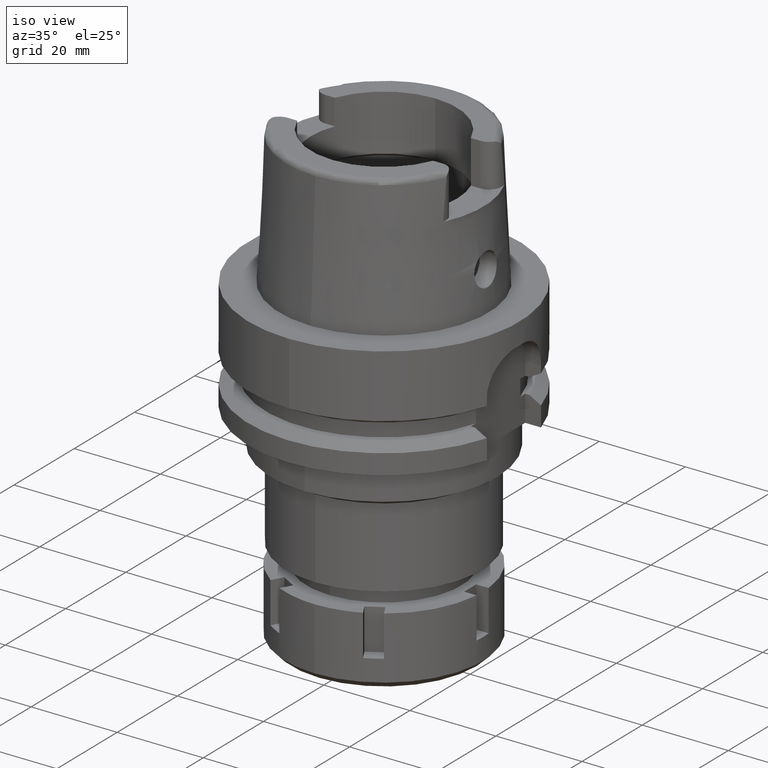
[diagram: clean part render]
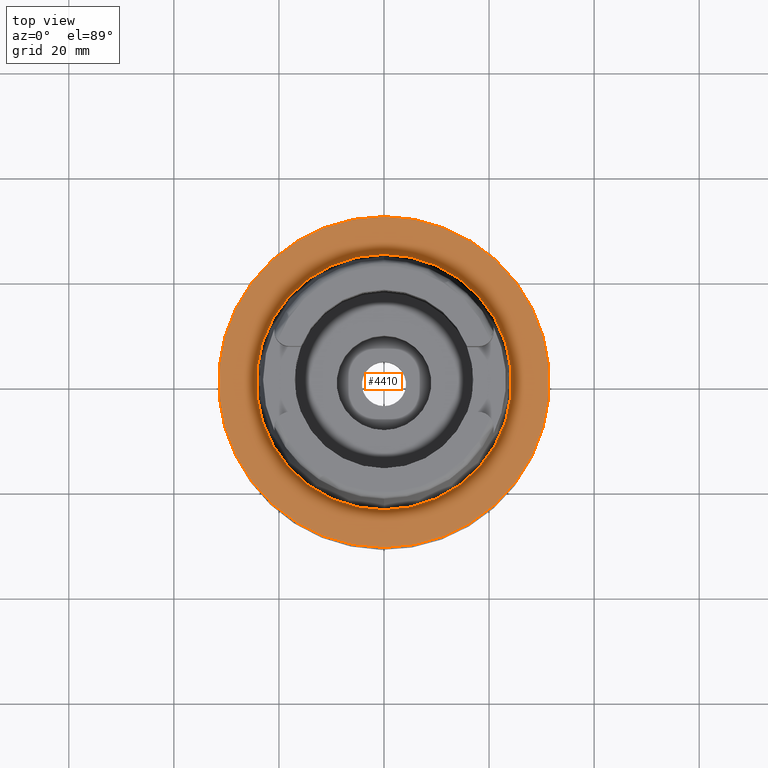
[diagram: tour spotlight — one face highlighted and labeled with its STEP entity id]
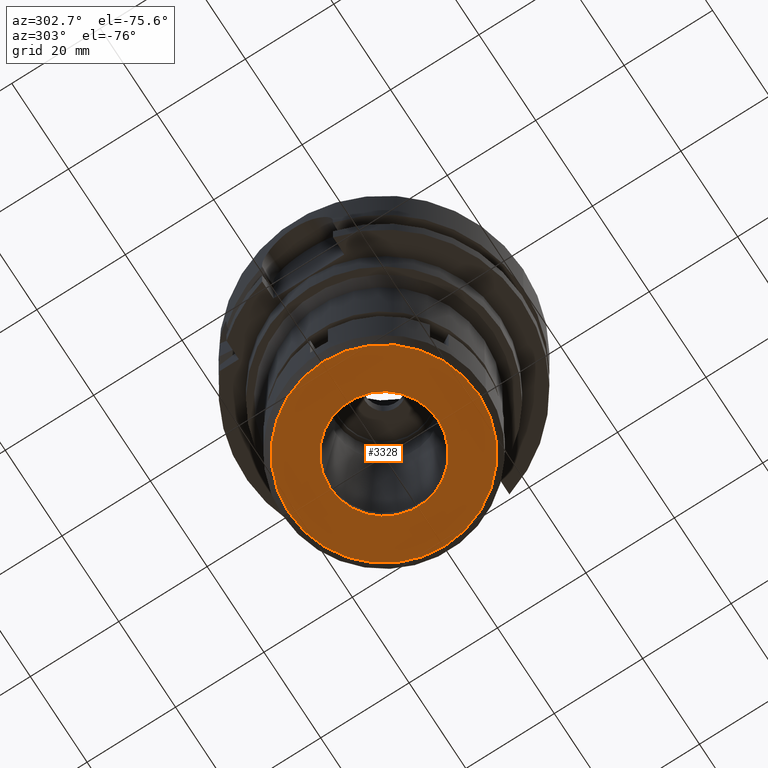
[diagram: tour spotlight — one face highlighted and labeled with its STEP entity id]
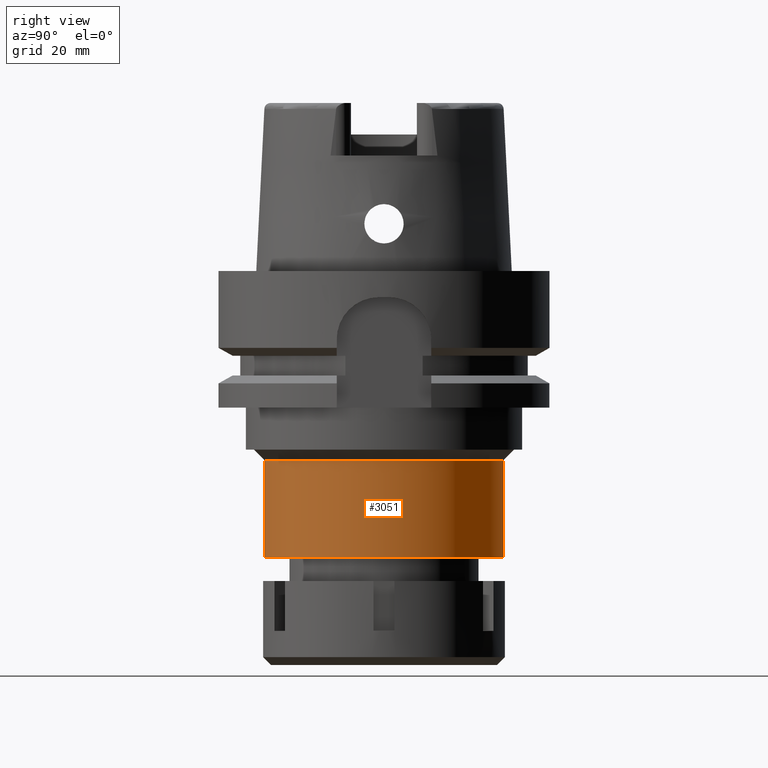
[diagram: tour spotlight — one face highlighted and labeled with its STEP entity id]
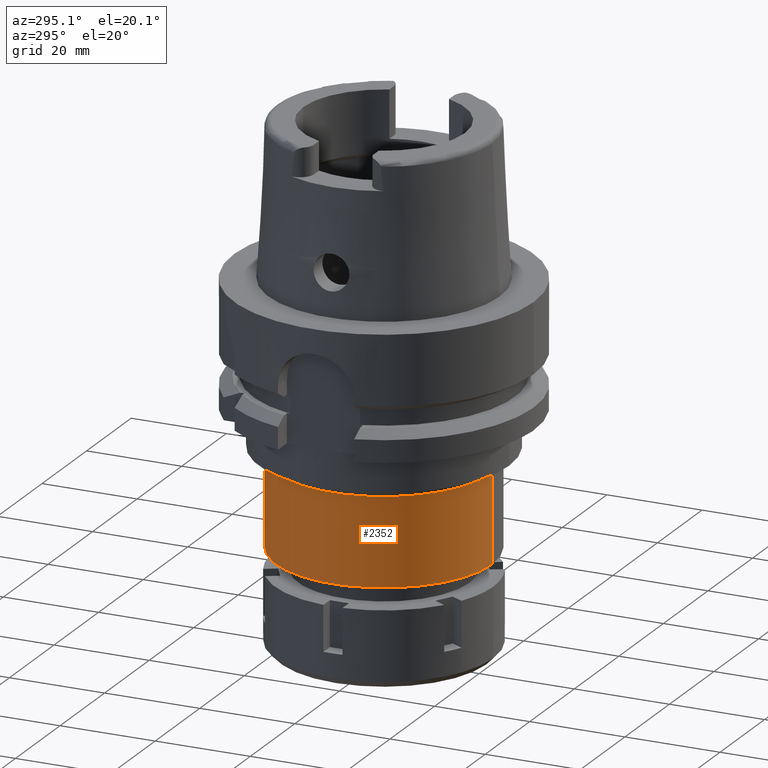
[diagram: tour spotlight — one face highlighted and labeled with its STEP entity id]
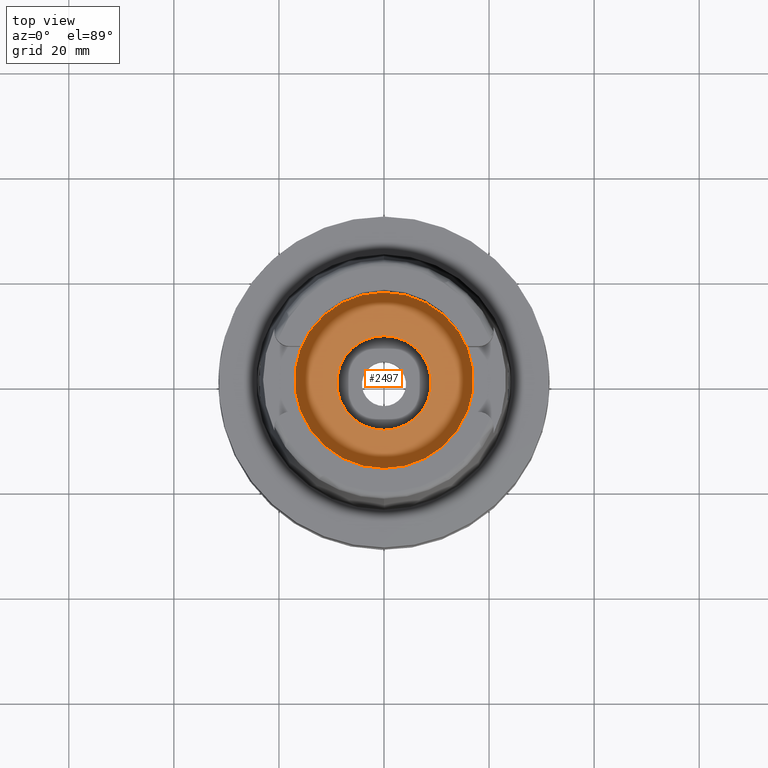
[diagram: tour spotlight — one face highlighted and labeled with its STEP entity id]
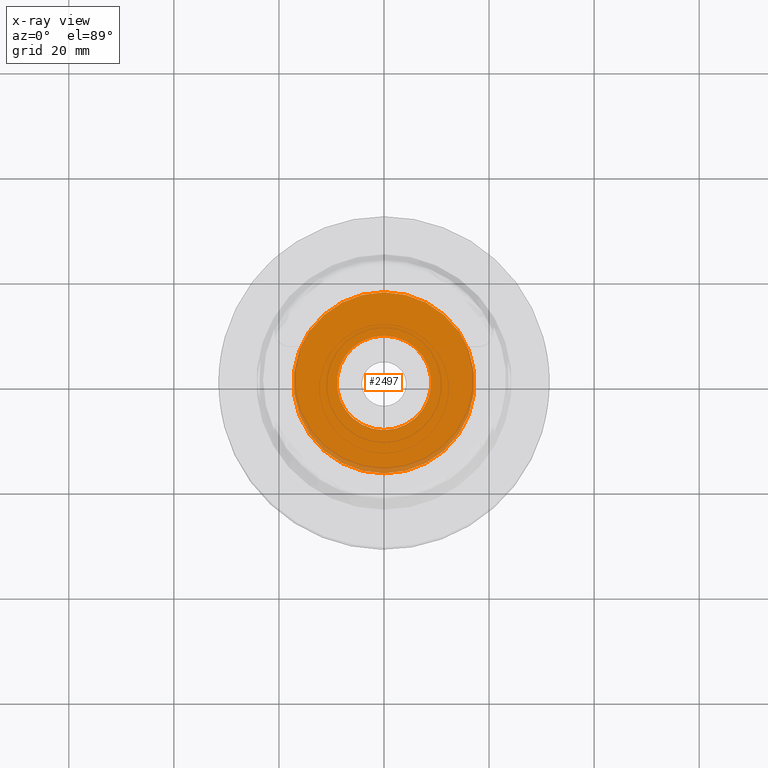
[diagram: x-ray of the same camera — body ghosted, this tour face saturated]
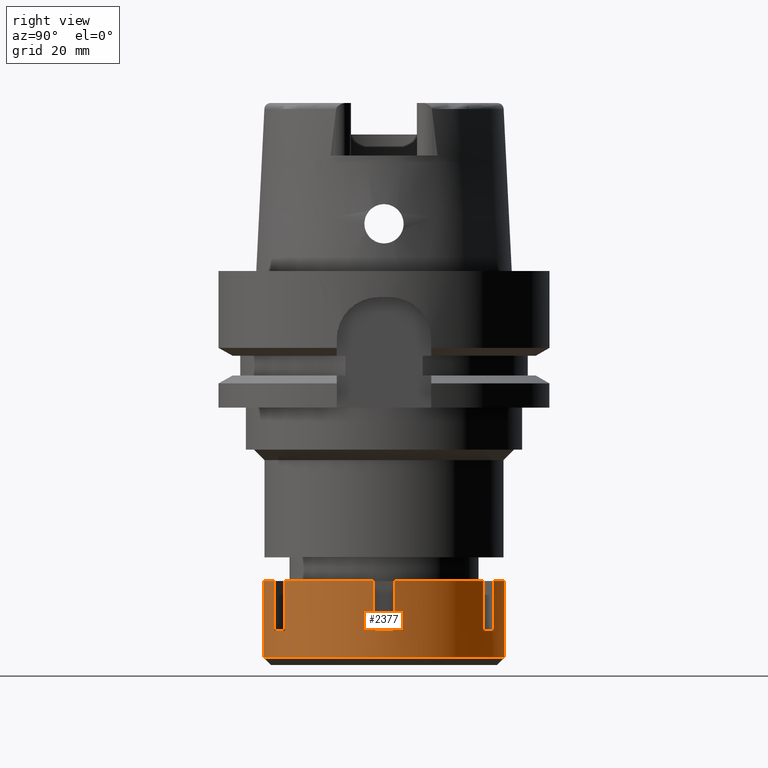
[diagram: tour spotlight — one face highlighted and labeled with its STEP entity id]
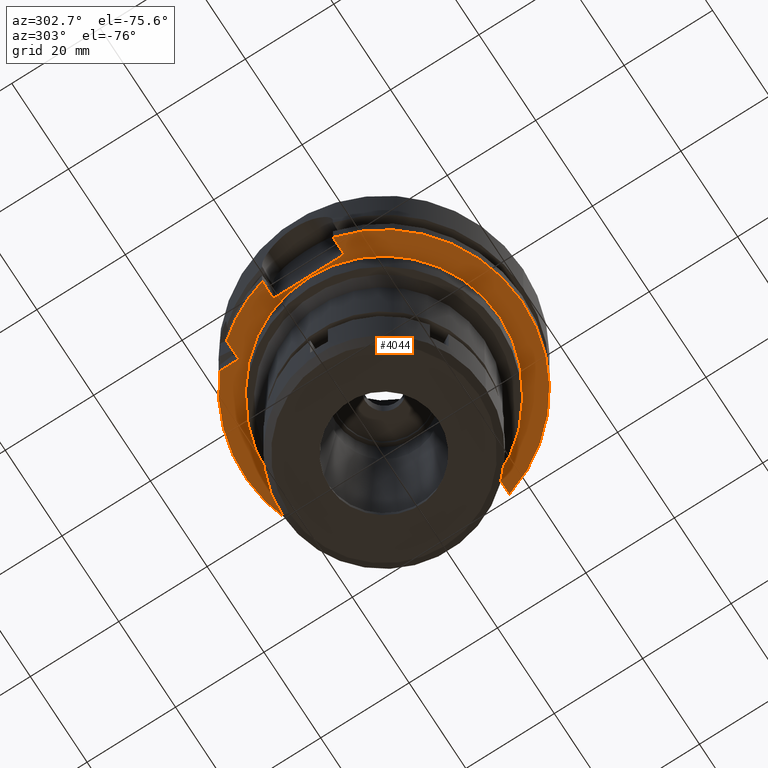
[diagram: tour spotlight — one face highlighted and labeled with its STEP entity id]
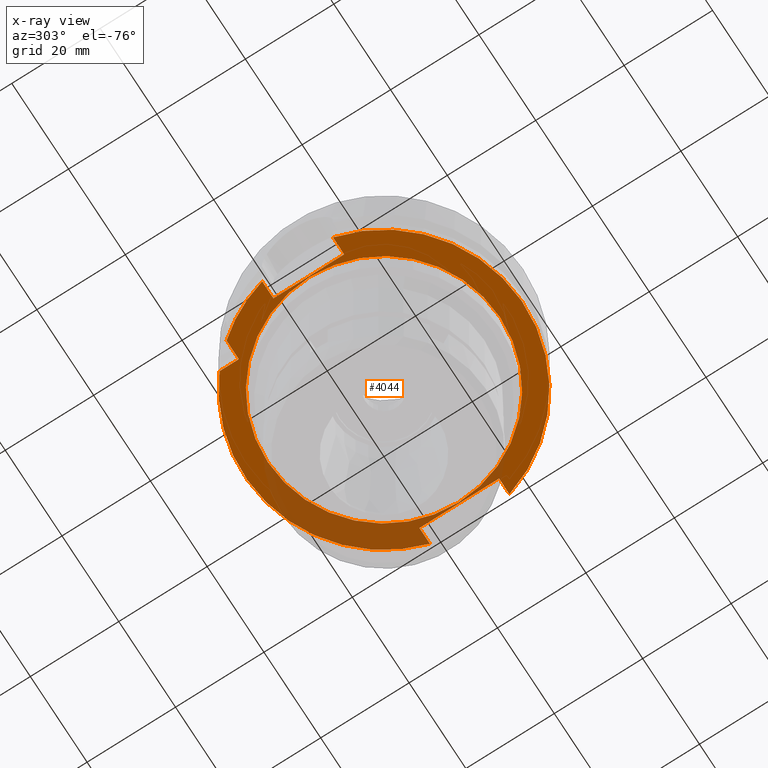
[diagram: x-ray of the same camera — body ghosted, this tour face saturated]
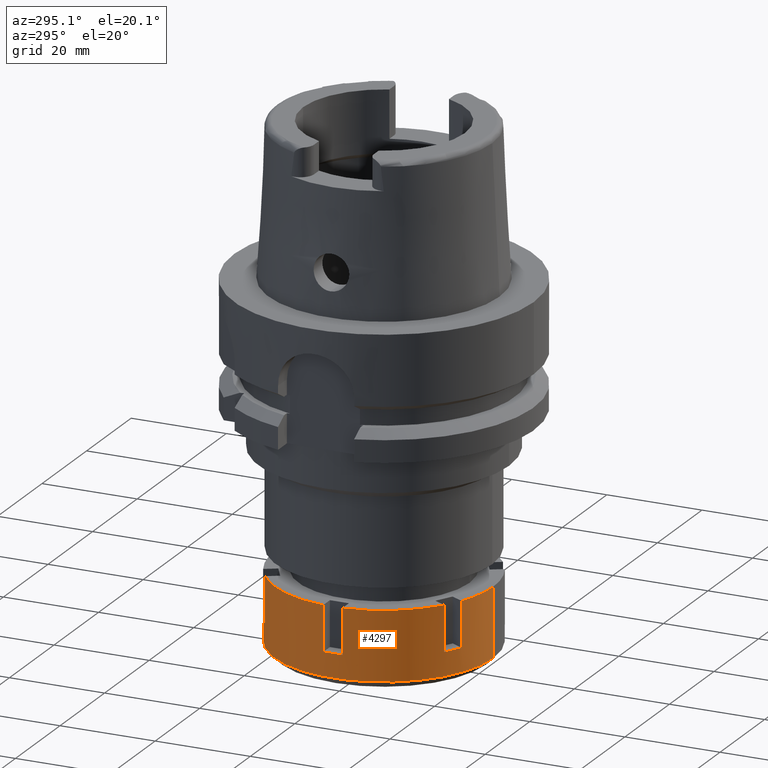
[diagram: tour spotlight — one face highlighted and labeled with its STEP entity id]
A machine part: a face-by-face anatomy tour. The part has 141 B-rep faces; the first image is the clean iso view, then the 8 largest visible faces are spotlighted one at a time (largest first), each with its STEP entity span.

Face 1 — top view, entity #4410. In plain terms, the highlighted planar face has unit normal (0, 0, 1).
Definition (entity closure, byte-faithful):
#130 = FACE_OUTER_BOUND ( 'NONE', #5136, .T. ) ;
#165 = DIRECTION ( 'NONE',  ( 1.000000000000000000, 0.0000000000000000000, 0.0000000000000000000 ) ) ;
#339 = CARTESIAN_POINT ( 'NONE',  ( 0.0000000000000000000, -24.31503482328999866, -9.841016890276999833E-13 ) ) ;
#567 = AXIS2_PLACEMENT_3D ( 'NONE', #2503, #3907, #5386 ) ;
#759 = DIRECTION ( 'NONE',  ( 0.0000000000000000000, -1.000000000000000000, 0.0000000000000000000 ) ) ;
#941 = AXIS2_PLACEMENT_3D ( 'NONE', #4261, #1405, #2859 ) ;
#1325 = ORIENTED_EDGE ( 'NONE', *, *, #3029, .F. ) ;
#1405 = DIRECTION ( 'NONE',  ( 0.0000000000000000000, 0.0000000000000000000, -1.000000000000000000 ) ) ;
#1539 = ORIENTED_EDGE ( 'NONE', *, *, #2115, .F. ) ;
#1993 = PLANE ( 'NONE',  #3288 ) ;
#2115 = EDGE_CURVE ( 'NONE', #5096, #5033, #3370, .T. ) ;
#2454 = AXIS2_PLACEMENT_3D ( 'NONE', #4749, #5673, #4689 ) ;
#2502 = DIRECTION ( 'NONE',  ( 0.0000000000000000000, 0.0000000000000000000, 1.000000000000000000 ) ) ;
#2503 = CARTESIAN_POINT ( 'NONE',  ( 0.0000000000000000000, 0.0000000000000000000, -1.705302565823999926E-12 ) ) ;
#2655 = AXIS2_PLACEMENT_3D ( 'NONE', #3168, #5097, #759 ) ;
#2666 = EDGE_CURVE ( 'NONE', #3062, #4401, #6109, .T. ) ;
#2726 = ORIENTED_EDGE ( 'NONE', *, *, #2666, .F. ) ;
#2859 = DIRECTION ( 'NONE',  ( 0.0000000000000000000, -1.000000000000000000, 0.0000000000000000000 ) ) ;
#2916 = CARTESIAN_POINT ( 'NONE',  ( 0.0000000000000000000, 31.50000000000000000, -1.042129345780999972E-13 ) ) ;
#2960 = CIRCLE ( 'NONE', #2454, 31.50000000000000000 ) ;
#3029 = EDGE_CURVE ( 'NONE', #4401, #3062, #2960, .T. ) ;
#3062 = VERTEX_POINT ( 'NONE', #5828 ) ;
#3120 = CARTESIAN_POINT ( 'NONE',  ( 0.0000000000000000000, 24.31503482328999866, -1.705302565823999926E-12 ) ) ;
#3168 = CARTESIAN_POINT ( 'NONE',  ( 0.0000000000000000000, 0.0000000000000000000, -1.705302565823999926E-12 ) ) ;
#3288 = AXIS2_PLACEMENT_3D ( 'NONE', #4406, #2502, #165 ) ;
#3370 = CIRCLE ( 'NONE', #2655, 24.31503482328999866 ) ;
#3907 = DIRECTION ( 'NONE',  ( 0.0000000000000000000, 0.0000000000000000000, 1.000000000000000000 ) ) ;
#4261 = CARTESIAN_POINT ( 'NONE',  ( 0.0000000000000000000, 0.0000000000000000000, -1.705302565823999875E-13 ) ) ;
#4401 = VERTEX_POINT ( 'NONE', #2916 ) ;
#4406 = CARTESIAN_POINT ( 'NONE',  ( 0.0000000000000000000, 0.0000000000000000000, 0.0000000000000000000 ) ) ;
#4410 = ADVANCED_FACE ( 'NONE', ( #130, #4877 ), #1993, .T. ) ;
#4428 = EDGE_LOOP ( 'NONE', ( #5678, #1539 ) ) ;
#4689 = DIRECTION ( 'NONE',  ( 0.0000000000000000000, 1.000000000000000000, 0.0000000000000000000 ) ) ;
#4749 = CARTESIAN_POINT ( 'NONE',  ( 0.0000000000000000000, 0.0000000000000000000, -1.705302565823999875E-13 ) ) ;
#4877 = FACE_BOUND ( 'NONE', #4428, .T. ) ;
#5033 = VERTEX_POINT ( 'NONE', #3120 ) ;
#5096 = VERTEX_POINT ( 'NONE', #339 ) ;
#5097 = DIRECTION ( 'NONE',  ( 0.0000000000000000000, 0.0000000000000000000, 1.000000000000000000 ) ) ;
#5136 = EDGE_LOOP ( 'NONE', ( #1325, #2726 ) ) ;
#5386 = DIRECTION ( 'NONE',  ( 0.0000000000000000000, 1.000000000000000000, 0.0000000000000000000 ) ) ;
#5508 = EDGE_CURVE ( 'NONE', #5033, #5096, #6138, .T. ) ;
#5673 = DIRECTION ( 'NONE',  ( 0.0000000000000000000, 0.0000000000000000000, -1.000000000000000000 ) ) ;
#5678 = ORIENTED_EDGE ( 'NONE', *, *, #5508, .F. ) ;
#5828 = CARTESIAN_POINT ( 'NONE',  ( 0.0000000000000000000, -31.50000000000000000, -1.705302565823999875E-13 ) ) ;
#6109 = CIRCLE ( 'NONE', #941, 31.50000000000000000 ) ;
#6138 = CIRCLE ( 'NONE', #567, 24.31503482328999866 ) ;

Face 2 — auxiliary view, entity #3328. In plain terms, the highlighted planar face has unit normal (0, 0, -1).
Definition (entity closure, byte-faithful):
#86 = CARTESIAN_POINT ( 'NONE',  ( 0.0000000000000000000, 0.0000000000000000000, -16.00000000000000000 ) ) ;
#429 = CARTESIAN_POINT ( 'NONE',  ( 0.0000000000000000000, 0.0000000000000000000, -16.00000000000000000 ) ) ;
#486 = CARTESIAN_POINT ( 'NONE',  ( 0.0000000000000000000, 21.50000000000000000, -16.00000000000000000 ) ) ;
#623 = CARTESIAN_POINT ( 'NONE',  ( 0.0000000000000000000, -12.25000000000000000, -16.00000000000000000 ) ) ;
#793 = DIRECTION ( 'NONE',  ( 0.0000000000000000000, -1.000000000000000000, 0.0000000000000000000 ) ) ;
#871 = DIRECTION ( 'NONE',  ( 0.0000000000000000000, -1.000000000000000000, 0.0000000000000000000 ) ) ;
#1082 = EDGE_LOOP ( 'NONE', ( #4345, #3056 ) ) ;
#1136 = CIRCLE ( 'NONE', #5285, 21.50000000000000000 ) ;
#1298 = CARTESIAN_POINT ( 'NONE',  ( 0.0000000000000000000, 0.0000000000000000000, -16.00000000000000000 ) ) ;
#1330 = FACE_BOUND ( 'NONE', #4780, .T. ) ;
#1470 = EDGE_CURVE ( 'NONE', #4222, #4817, #5584, .T. ) ;
#1573 = CARTESIAN_POINT ( 'NONE',  ( 0.0000000000000000000, 0.0000000000000000000, -16.00000000000000000 ) ) ;
#1644 = ORIENTED_EDGE ( 'NONE', *, *, #5155, .F. ) ;
#1841 = CARTESIAN_POINT ( 'NONE',  ( 0.0000000000000000000, 12.25000000000000000, -16.00000000000000000 ) ) ;
#2332 = EDGE_CURVE ( 'NONE', #4817, #4222, #1136, .T. ) ;
#2348 = DIRECTION ( 'NONE',  ( 0.0000000000000000000, 0.0000000000000000000, -1.000000000000000000 ) ) ;
#2466 = CIRCLE ( 'NONE', #3577, 12.25000000000000000 ) ;
#2812 = PLANE ( 'NONE',  #5099 ) ;
#2933 = DIRECTION ( 'NONE',  ( 0.0000000000000000000, 0.0000000000000000000, 1.000000000000000000 ) ) ;
#2997 = DIRECTION ( 'NONE',  ( 0.0000000000000000000, 1.000000000000000000, 0.0000000000000000000 ) ) ;
#3056 = ORIENTED_EDGE ( 'NONE', *, *, #2332, .F. ) ;
#3294 = AXIS2_PLACEMENT_3D ( 'NONE', #86, #4887, #4537 ) ;
#3328 = ADVANCED_FACE ( 'NONE', ( #4218, #1330 ), #2812, .T. ) ;
#3577 = AXIS2_PLACEMENT_3D ( 'NONE', #429, #2348, #871 ) ;
#3870 = AXIS2_PLACEMENT_3D ( 'NONE', #5820, #2933, #2997 ) ;
#3915 = EDGE_CURVE ( 'NONE', #6059, #5921, #2466, .T. ) ;
#4012 = DIRECTION ( 'NONE',  ( 0.0000000000000000000, -1.000000000000000000, 0.0000000000000000000 ) ) ;
#4078 = DIRECTION ( 'NONE',  ( 0.0000000000000000000, 0.0000000000000000000, 1.000000000000000000 ) ) ;
#4218 = FACE_OUTER_BOUND ( 'NONE', #1082, .T. ) ;
#4222 = VERTEX_POINT ( 'NONE', #486 ) ;
#4345 = ORIENTED_EDGE ( 'NONE', *, *, #1470, .F. ) ;
#4537 = DIRECTION ( 'NONE',  ( 0.0000000000000000000, 1.000000000000000000, 0.0000000000000000000 ) ) ;
#4735 = ORIENTED_EDGE ( 'NONE', *, *, #3915, .F. ) ;
#4780 = EDGE_LOOP ( 'NONE', ( #1644, #4735 ) ) ;
#4817 = VERTEX_POINT ( 'NONE', #5670 ) ;
#4887 = DIRECTION ( 'NONE',  ( 0.0000000000000000000, 0.0000000000000000000, -1.000000000000000000 ) ) ;
#5099 = AXIS2_PLACEMENT_3D ( 'NONE', #1298, #5247, #793 ) ;
#5155 = EDGE_CURVE ( 'NONE', #5921, #6059, #5213, .T. ) ;
#5213 = CIRCLE ( 'NONE', #3294, 12.25000000000000000 ) ;
#5247 = DIRECTION ( 'NONE',  ( 0.0000000000000000000, 0.0000000000000000000, -1.000000000000000000 ) ) ;
#5285 = AXIS2_PLACEMENT_3D ( 'NONE', #1573, #4078, #4012 ) ;
#5584 = CIRCLE ( 'NONE', #3870, 21.50000000000000000 ) ;
#5670 = CARTESIAN_POINT ( 'NONE',  ( 0.0000000000000000000, -21.50000000000000000, -16.00000000000000000 ) ) ;
#5820 = CARTESIAN_POINT ( 'NONE',  ( 0.0000000000000000000, 0.0000000000000000000, -16.00000000000000000 ) ) ;
#5921 = VERTEX_POINT ( 'NONE', #1841 ) ;
#6059 = VERTEX_POINT ( 'NONE', #623 ) ;

Face 3 — right view, entity #3051. In plain terms, the highlighted cylindrical surface (partial cylindrical patch) has radius 22.75 mm, axis along (0, 0, 1).
Definition (entity closure, byte-faithful):
#98 = FACE_OUTER_BOUND ( 'NONE', #2396, .T. ) ;
#103 = DIRECTION ( 'NONE',  ( 0.0000000000000000000, -1.000000000000000000, 0.0000000000000000000 ) ) ;
#218 = VERTEX_POINT ( 'NONE', #2932 ) ;
#382 = AXIS2_PLACEMENT_3D ( 'NONE', #3924, #2905, #4836 ) ;
#516 = DIRECTION ( 'NONE',  ( 0.0000000000000000000, 0.0000000000000000000, 1.000000000000000000 ) ) ;
#673 = ORIENTED_EDGE ( 'NONE', *, *, #3620, .T. ) ;
#726 = EDGE_CURVE ( 'NONE', #3144, #218, #5625, .T. ) ;
#766 = VERTEX_POINT ( 'NONE', #5684 ) ;
#872 = DIRECTION ( 'NONE',  ( 0.0000000000000000000, 0.0000000000000000000, -1.000000000000000000 ) ) ;
#1322 = EDGE_CURVE ( 'NONE', #3144, #766, #2892, .T. ) ;
#1533 = LINE ( 'NONE', #1922, #4691 ) ;
#1922 = CARTESIAN_POINT ( 'NONE',  ( 0.0000000000000000000, -22.75000000000000000, -36.00000000000000000 ) ) ;
#2015 = DIRECTION ( 'NONE',  ( 0.0000000000000000000, 1.000000000000000000, 0.0000000000000000000 ) ) ;
#2261 = CARTESIAN_POINT ( 'NONE',  ( 0.0000000000000000000, 22.75000000000000000, -36.00000000000000000 ) ) ;
#2283 = VECTOR ( 'NONE', #872, 1000.000000000000000 ) ;
#2290 = ORIENTED_EDGE ( 'NONE', *, *, #4371, .T. ) ;
#2396 = EDGE_LOOP ( 'NONE', ( #4232, #673, #2290, #3510 ) ) ;
#2892 = CIRCLE ( 'NONE', #382, 22.75000000000000000 ) ;
#2905 = DIRECTION ( 'NONE',  ( 0.0000000000000000000, 0.0000000000000000000, -1.000000000000000000 ) ) ;
#2932 = CARTESIAN_POINT ( 'NONE',  ( 0.0000000000000000000, 22.75000000000000000, -54.50000000000000000 ) ) ;
#2945 = CARTESIAN_POINT ( 'NONE',  ( 0.0000000000000000000, 0.0000000000000000000, -54.50000000000000000 ) ) ;
#3051 = ADVANCED_FACE ( 'NONE', ( #98 ), #4903, .T. ) ;
#3144 = VERTEX_POINT ( 'NONE', #4522 ) ;
#3510 = ORIENTED_EDGE ( 'NONE', *, *, #726, .F. ) ;
#3620 = EDGE_CURVE ( 'NONE', #766, #4754, #1533, .T. ) ;
#3794 = AXIS2_PLACEMENT_3D ( 'NONE', #2945, #516, #103 ) ;
#3887 = DIRECTION ( 'NONE',  ( 0.0000000000000000000, 0.0000000000000000000, -1.000000000000000000 ) ) ;
#3924 = CARTESIAN_POINT ( 'NONE',  ( 0.0000000000000000000, 0.0000000000000000000, -36.00000000000000000 ) ) ;
#3928 = CARTESIAN_POINT ( 'NONE',  ( 0.0000000000000000000, 0.0000000000000000000, -71.95000000000000284 ) ) ;
#4232 = ORIENTED_EDGE ( 'NONE', *, *, #1322, .T. ) ;
#4250 = CARTESIAN_POINT ( 'NONE',  ( 0.0000000000000000000, -22.75000000000000000, -54.50000000000000000 ) ) ;
#4371 = EDGE_CURVE ( 'NONE', #4754, #218, #5506, .T. ) ;
#4522 = CARTESIAN_POINT ( 'NONE',  ( 0.0000000000000000000, 22.75000000000000000, -36.00000000000000000 ) ) ;
#4691 = VECTOR ( 'NONE', #3887, 1000.000000000000000 ) ;
#4754 = VERTEX_POINT ( 'NONE', #4250 ) ;
#4836 = DIRECTION ( 'NONE',  ( 0.0000000000000000000, 1.000000000000000000, 0.0000000000000000000 ) ) ;
#4903 = CYLINDRICAL_SURFACE ( 'NONE', #5699, 22.75000000000000000 ) ;
#5322 = DIRECTION ( 'NONE',  ( 0.0000000000000000000, 0.0000000000000000000, 1.000000000000000000 ) ) ;
#5506 = CIRCLE ( 'NONE', #3794, 22.75000000000000000 ) ;
#5625 = LINE ( 'NONE', #2261, #2283 ) ;
#5684 = CARTESIAN_POINT ( 'NONE',  ( 0.0000000000000000000, -22.75000000000000000, -36.00000000000000000 ) ) ;
#5699 = AXIS2_PLACEMENT_3D ( 'NONE', #3928, #5322, #2015 ) ;

Face 4 — auxiliary view, entity #2352. In plain terms, the highlighted cylindrical surface (partial cylindrical patch) has radius 22.75 mm, axis along (0, 0, 1).
Definition (entity closure, byte-faithful):
#218 = VERTEX_POINT ( 'NONE', #2932 ) ;
#310 = ORIENTED_EDGE ( 'NONE', *, *, #726, .T. ) ;
#426 = EDGE_LOOP ( 'NONE', ( #1310, #3869, #2133, #310 ) ) ;
#442 = AXIS2_PLACEMENT_3D ( 'NONE', #1194, #2647, #5091 ) ;
#726 = EDGE_CURVE ( 'NONE', #3144, #218, #5625, .T. ) ;
#766 = VERTEX_POINT ( 'NONE', #5684 ) ;
#872 = DIRECTION ( 'NONE',  ( 0.0000000000000000000, 0.0000000000000000000, -1.000000000000000000 ) ) ;
#1194 = CARTESIAN_POINT ( 'NONE',  ( 0.0000000000000000000, 0.0000000000000000000, -71.95000000000000284 ) ) ;
#1310 = ORIENTED_EDGE ( 'NONE', *, *, #5839, .T. ) ;
#1533 = LINE ( 'NONE', #1922, #4691 ) ;
#1922 = CARTESIAN_POINT ( 'NONE',  ( 0.0000000000000000000, -22.75000000000000000, -36.00000000000000000 ) ) ;
#1982 = DIRECTION ( 'NONE',  ( 0.0000000000000000000, -1.000000000000000000, 0.0000000000000000000 ) ) ;
#2105 = CYLINDRICAL_SURFACE ( 'NONE', #442, 22.75000000000000000 ) ;
#2133 = ORIENTED_EDGE ( 'NONE', *, *, #3593, .T. ) ;
#2261 = CARTESIAN_POINT ( 'NONE',  ( 0.0000000000000000000, 22.75000000000000000, -36.00000000000000000 ) ) ;
#2283 = VECTOR ( 'NONE', #872, 1000.000000000000000 ) ;
#2352 = ADVANCED_FACE ( 'NONE', ( #3563 ), #2105, .T. ) ;
#2384 = AXIS2_PLACEMENT_3D ( 'NONE', #4623, #5609, #2730 ) ;
#2398 = CARTESIAN_POINT ( 'NONE',  ( 0.0000000000000000000, 0.0000000000000000000, -36.00000000000000000 ) ) ;
#2647 = DIRECTION ( 'NONE',  ( 0.0000000000000000000, 0.0000000000000000000, 1.000000000000000000 ) ) ;
#2730 = DIRECTION ( 'NONE',  ( 0.0000000000000000000, 1.000000000000000000, 0.0000000000000000000 ) ) ;
#2773 = CIRCLE ( 'NONE', #6216, 22.75000000000000000 ) ;
#2932 = CARTESIAN_POINT ( 'NONE',  ( 0.0000000000000000000, 22.75000000000000000, -54.50000000000000000 ) ) ;
#3144 = VERTEX_POINT ( 'NONE', #4522 ) ;
#3563 = FACE_OUTER_BOUND ( 'NONE', #426, .T. ) ;
#3593 = EDGE_CURVE ( 'NONE', #766, #3144, #2773, .T. ) ;
#3620 = EDGE_CURVE ( 'NONE', #766, #4754, #1533, .T. ) ;
#3869 = ORIENTED_EDGE ( 'NONE', *, *, #3620, .F. ) ;
#3887 = DIRECTION ( 'NONE',  ( 0.0000000000000000000, 0.0000000000000000000, -1.000000000000000000 ) ) ;
#4250 = CARTESIAN_POINT ( 'NONE',  ( 0.0000000000000000000, -22.75000000000000000, -54.50000000000000000 ) ) ;
#4333 = DIRECTION ( 'NONE',  ( 0.0000000000000000000, 0.0000000000000000000, -1.000000000000000000 ) ) ;
#4522 = CARTESIAN_POINT ( 'NONE',  ( 0.0000000000000000000, 22.75000000000000000, -36.00000000000000000 ) ) ;
#4623 = CARTESIAN_POINT ( 'NONE',  ( 0.0000000000000000000, 0.0000000000000000000, -54.50000000000000000 ) ) ;
#4691 = VECTOR ( 'NONE', #3887, 1000.000000000000000 ) ;
#4754 = VERTEX_POINT ( 'NONE', #4250 ) ;
#5091 = DIRECTION ( 'NONE',  ( 0.0000000000000000000, 1.000000000000000000, 0.0000000000000000000 ) ) ;
#5609 = DIRECTION ( 'NONE',  ( 0.0000000000000000000, 0.0000000000000000000, 1.000000000000000000 ) ) ;
#5625 = LINE ( 'NONE', #2261, #2283 ) ;
#5628 = CIRCLE ( 'NONE', #2384, 22.75000000000000000 ) ;
#5684 = CARTESIAN_POINT ( 'NONE',  ( 0.0000000000000000000, -22.75000000000000000, -36.00000000000000000 ) ) ;
#5839 = EDGE_CURVE ( 'NONE', #218, #4754, #5628, .T. ) ;
#6216 = AXIS2_PLACEMENT_3D ( 'NONE', #2398, #4333, #1982 ) ;

Face 5 — top view, entity #2497. An x-ray twin of the same camera follows (body ghosted, this face saturated) — the face is partly hidden behind the body. In plain terms, the highlighted planar face has unit normal (0, 0, 1).
Definition (entity closure, byte-faithful):
#41 = EDGE_CURVE ( 'NONE', #2602, #2542, #5911, .T. ) ;
#161 = AXIS2_PLACEMENT_3D ( 'NONE', #2293, #4571, #807 ) ;
#443 = DIRECTION ( 'NONE',  ( 0.0000000000000000000, -1.000000000000000000, 0.0000000000000000000 ) ) ;
#553 = DIRECTION ( 'NONE',  ( 0.0000000000000000000, 0.0000000000000000000, -1.000000000000000000 ) ) ;
#655 = CIRCLE ( 'NONE', #3898, 9.000000000000000000 ) ;
#665 = ORIENTED_EDGE ( 'NONE', *, *, #5331, .F. ) ;
#701 = EDGE_LOOP ( 'NONE', ( #2469, #6044 ) ) ;
#770 = VERTEX_POINT ( 'NONE', #2771 ) ;
#807 = DIRECTION ( 'NONE',  ( 0.0000000000000000000, -1.000000000000000000, 0.0000000000000000000 ) ) ;
#1403 = DIRECTION ( 'NONE',  ( 0.0000000000000000000, 1.000000000000000000, 0.0000000000000000000 ) ) ;
#2123 = EDGE_CURVE ( 'NONE', #2542, #2602, #2955, .T. ) ;
#2293 = CARTESIAN_POINT ( 'NONE',  ( 0.0000000000000000000, 0.0000000000000000000, -9.950000000000001066 ) ) ;
#2469 = ORIENTED_EDGE ( 'NONE', *, *, #2123, .F. ) ;
#2497 = ADVANCED_FACE ( 'NONE', ( #5582, #3117 ), #3183, .T. ) ;
#2542 = VERTEX_POINT ( 'NONE', #4067 ) ;
#2602 = VERTEX_POINT ( 'NONE', #5995 ) ;
#2771 = CARTESIAN_POINT ( 'NONE',  ( 0.0000000000000000000, -9.000000000000000000, -9.950000000000001066 ) ) ;
#2809 = VERTEX_POINT ( 'NONE', #4880 ) ;
#2842 = CARTESIAN_POINT ( 'NONE',  ( 0.0000000000000000000, 0.0000000000000000000, -9.950000000000001066 ) ) ;
#2887 = CIRCLE ( 'NONE', #161, 9.000000000000000000 ) ;
#2955 = CIRCLE ( 'NONE', #4680, 17.25000000000000000 ) ;
#3117 = FACE_BOUND ( 'NONE', #5338, .T. ) ;
#3167 = ORIENTED_EDGE ( 'NONE', *, *, #5342, .F. ) ;
#3183 = PLANE ( 'NONE',  #3877 ) ;
#3205 = CARTESIAN_POINT ( 'NONE',  ( 0.0000000000000000000, 0.0000000000000000000, -9.950000000000001066 ) ) ;
#3617 = DIRECTION ( 'NONE',  ( 0.0000000000000000000, 0.0000000000000000000, 1.000000000000000000 ) ) ;
#3814 = DIRECTION ( 'NONE',  ( 0.0000000000000000000, 0.0000000000000000000, 1.000000000000000000 ) ) ;
#3877 = AXIS2_PLACEMENT_3D ( 'NONE', #4633, #3617, #5048 ) ;
#3898 = AXIS2_PLACEMENT_3D ( 'NONE', #6252, #3814, #1403 ) ;
#4067 = CARTESIAN_POINT ( 'NONE',  ( 0.0000000000000000000, 17.25000000000000000, -9.950000000000001066 ) ) ;
#4208 = AXIS2_PLACEMENT_3D ( 'NONE', #2842, #4770, #443 ) ;
#4571 = DIRECTION ( 'NONE',  ( 0.0000000000000000000, 0.0000000000000000000, 1.000000000000000000 ) ) ;
#4621 = DIRECTION ( 'NONE',  ( 0.0000000000000000000, 1.000000000000000000, 0.0000000000000000000 ) ) ;
#4633 = CARTESIAN_POINT ( 'NONE',  ( 0.0000000000000000000, 0.0000000000000000000, -9.950000000000001066 ) ) ;
#4680 = AXIS2_PLACEMENT_3D ( 'NONE', #3205, #553, #4621 ) ;
#4770 = DIRECTION ( 'NONE',  ( 0.0000000000000000000, 0.0000000000000000000, -1.000000000000000000 ) ) ;
#4880 = CARTESIAN_POINT ( 'NONE',  ( 0.0000000000000000000, 9.000000000000000000, -9.950000000000001066 ) ) ;
#5048 = DIRECTION ( 'NONE',  ( 1.000000000000000000, 0.0000000000000000000, 0.0000000000000000000 ) ) ;
#5331 = EDGE_CURVE ( 'NONE', #770, #2809, #2887, .T. ) ;
#5338 = EDGE_LOOP ( 'NONE', ( #3167, #665 ) ) ;
#5342 = EDGE_CURVE ( 'NONE', #2809, #770, #655, .T. ) ;
#5582 = FACE_OUTER_BOUND ( 'NONE', #701, .T. ) ;
#5911 = CIRCLE ( 'NONE', #4208, 17.25000000000000000 ) ;
#5995 = CARTESIAN_POINT ( 'NONE',  ( 0.0000000000000000000, -17.25000000000000000, -9.950000000000001066 ) ) ;
#6044 = ORIENTED_EDGE ( 'NONE', *, *, #41, .F. ) ;
#6252 = CARTESIAN_POINT ( 'NONE',  ( 0.0000000000000000000, 0.0000000000000000000, -9.950000000000001066 ) ) ;

Face 6 — right view, entity #2377. In plain terms, the highlighted cylindrical surface (partial cylindrical patch) has radius 23 mm, axis along (0, 0, -1).
Definition (entity closure, byte-faithful):
#28 = CARTESIAN_POINT ( 'NONE',  ( 0.0000000000000000000, 0.0000000000000000000, -9.500000000000000000 ) ) ;
#85 = EDGE_CURVE ( 'NONE', #2735, #1221, #4740, .T. ) ;
#144 = AXIS2_PLACEMENT_3D ( 'NONE', #2841, #1733, #3259 ) ;
#160 = CARTESIAN_POINT ( 'NONE',  ( 9.724388429822001356, 20.84313483297999881, -9.500000000000000000 ) ) ;
#202 = DIRECTION ( 'NONE',  ( 0.0000000000000000000, 0.0000000000000000000, -1.000000000000000000 ) ) ;
#232 = CARTESIAN_POINT ( 'NONE',  ( 13.18849004495999999, -18.84313483298000236, -9.500000000000000000 ) ) ;
#244 = AXIS2_PLACEMENT_3D ( 'NONE', #28, #5345, #591 ) ;
#407 = VERTEX_POINT ( 'NONE', #1477 ) ;
#591 = DIRECTION ( 'NONE',  ( 0.9962121075990957308, 0.08695652173912968297, 0.0000000000000000000 ) ) ;
#660 = LINE ( 'NONE', #160, #2871 ) ;
#685 = ORIENTED_EDGE ( 'NONE', *, *, #3409, .T. ) ;
#696 = ORIENTED_EDGE ( 'NONE', *, *, #4185, .T. ) ;
#728 = EDGE_CURVE ( 'NONE', #6023, #2857, #2226, .T. ) ;
#843 = VECTOR ( 'NONE', #5114, 1000.000000000000000 ) ;
#859 = CIRCLE ( 'NONE', #6009, 23.00000000000001066 ) ;
#868 = VERTEX_POINT ( 'NONE', #5290 ) ;
#882 = DIRECTION ( 'NONE',  ( 0.0000000000000000000, 0.0000000000000000000, 1.000000000000000000 ) ) ;
#930 = CARTESIAN_POINT ( 'NONE',  ( 0.0000000000000000000, 0.0000000000000000000, -9.500000000000000000 ) ) ;
#962 = DIRECTION ( 'NONE',  ( 0.4227994969487938182, 0.9062232536079875000, 0.0000000000000000000 ) ) ;
#1052 = AXIS2_PLACEMENT_3D ( 'NONE', #6127, #202, #3544 ) ;
#1073 = VERTEX_POINT ( 'NONE', #4086 ) ;
#1075 = EDGE_LOOP ( 'NONE', ( #6170, #4976, #2327, #3727, #1583, #1607, #1703, #696, #3140, #685, #3071, #1141, #2763, #1675, #4288, #5591 ) ) ;
#1080 = CARTESIAN_POINT ( 'NONE',  ( 0.0000000000000000000, -23.00000000000000000, -14.50000000000000000 ) ) ;
#1110 = EDGE_CURVE ( 'NONE', #1527, #2242, #3306, .T. ) ;
#1141 = ORIENTED_EDGE ( 'NONE', *, *, #6228, .T. ) ;
#1162 = DIRECTION ( 'NONE',  ( 0.0000000000000000000, -1.000000000000000000, 0.0000000000000000000 ) ) ;
#1181 = VERTEX_POINT ( 'NONE', #1300 ) ;
#1221 = VERTEX_POINT ( 'NONE', #2243 ) ;
#1300 = CARTESIAN_POINT ( 'NONE',  ( 9.724388429820001178, -20.84313483297999881, -9.500000000000000000 ) ) ;
#1302 = CARTESIAN_POINT ( 'NONE',  ( 9.724388429822001356, 20.84313483297999881, 0.0000000000000000000 ) ) ;
#1308 = VERTEX_POINT ( 'NONE', #1418 ) ;
#1329 = DIRECTION ( 'NONE',  ( 0.0000000000000000000, -1.000000000000000000, 0.0000000000000000000 ) ) ;
#1381 = AXIS2_PLACEMENT_3D ( 'NONE', #4802, #882, #1329 ) ;
#1418 = CARTESIAN_POINT ( 'NONE',  ( 22.91287847478000117, 2.000000000000000000, -9.500000000000000000 ) ) ;
#1477 = CARTESIAN_POINT ( 'NONE',  ( 0.0000000000000000000, 23.00000000000000000, -14.50000000000000000 ) ) ;
#1527 = VERTEX_POINT ( 'NONE', #4011 ) ;
#1583 = ORIENTED_EDGE ( 'NONE', *, *, #3785, .F. ) ;
#1607 = ORIENTED_EDGE ( 'NONE', *, *, #4746, .T. ) ;
#1637 = VECTOR ( 'NONE', #5117, 1000.000000000000000 ) ;
#1662 = VERTEX_POINT ( 'NONE', #6202 ) ;
#1675 = ORIENTED_EDGE ( 'NONE', *, *, #1110, .T. ) ;
#1703 = ORIENTED_EDGE ( 'NONE', *, *, #4986, .F. ) ;
#1733 = DIRECTION ( 'NONE',  ( 0.0000000000000000000, 0.0000000000000000000, -1.000000000000000000 ) ) ;
#1863 = CIRCLE ( 'NONE', #144, 23.00000000000000355 ) ;
#2022 = CARTESIAN_POINT ( 'NONE',  ( 22.91287847478000117, 2.000000000000000000, -9.500000000000000000 ) ) ;
#2037 = EDGE_CURVE ( 'NONE', #1073, #1181, #4636, .T. ) ;
#2065 = AXIS2_PLACEMENT_3D ( 'NONE', #2845, #5166, #4686 ) ;
#2131 = LINE ( 'NONE', #5493, #4807 ) ;
#2224 = LINE ( 'NONE', #4169, #843 ) ;
#2226 = LINE ( 'NONE', #4204, #4312 ) ;
#2242 = VERTEX_POINT ( 'NONE', #1302 ) ;
#2243 = CARTESIAN_POINT ( 'NONE',  ( 13.18849004495999999, 18.84313483298000236, -9.500000000000000000 ) ) ;
#2292 = AXIS2_PLACEMENT_3D ( 'NONE', #2814, #3262, #3736 ) ;
#2314 = VERTEX_POINT ( 'NONE', #5437 ) ;
#2327 = ORIENTED_EDGE ( 'NONE', *, *, #4415, .F. ) ;
#2377 = ADVANCED_FACE ( 'NONE', ( #4042 ), #3100, .T. ) ;
#2442 = CARTESIAN_POINT ( 'NONE',  ( 22.91287847478000117, 2.000000000000000000, 0.0000000000000000000 ) ) ;
#2573 = EDGE_CURVE ( 'NONE', #1527, #407, #2224, .T. ) ;
#2735 = VERTEX_POINT ( 'NONE', #3245 ) ;
#2763 = ORIENTED_EDGE ( 'NONE', *, *, #2573, .F. ) ;
#2814 = CARTESIAN_POINT ( 'NONE',  ( 0.0000000000000000000, 0.0000000000000000000, 0.0000000000000000000 ) ) ;
#2841 = CARTESIAN_POINT ( 'NONE',  ( 0.0000000000000000000, 0.0000000000000000000, 0.0000000000000000000 ) ) ;
#2845 = CARTESIAN_POINT ( 'NONE',  ( 0.0000000000000000000, 0.0000000000000000000, 0.0000000000000000000 ) ) ;
#2857 = VERTEX_POINT ( 'NONE', #1080 ) ;
#2871 = VECTOR ( 'NONE', #4016, 1000.000000000000000 ) ;
#2877 = AXIS2_PLACEMENT_3D ( 'NONE', #4351, #4697, #5713 ) ;
#3007 = DIRECTION ( 'NONE',  ( 0.0000000000000000000, 0.0000000000000000000, 1.000000000000000000 ) ) ;
#3071 = ORIENTED_EDGE ( 'NONE', *, *, #728, .T. ) ;
#3100 = CYLINDRICAL_SURFACE ( 'NONE', #5594, 23.00000000000000000 ) ;
#3132 = EDGE_CURVE ( 'NONE', #868, #2242, #660, .T. ) ;
#3140 = ORIENTED_EDGE ( 'NONE', *, *, #2037, .F. ) ;
#3245 = CARTESIAN_POINT ( 'NONE',  ( 13.18849004495999999, 18.84313483298000236, 0.0000000000000000000 ) ) ;
#3246 = CARTESIAN_POINT ( 'NONE',  ( 22.91287847478000117, -2.000000000000000000, 0.0000000000000000000 ) ) ;
#3259 = DIRECTION ( 'NONE',  ( 0.4227994969487119392, -0.9062232536080258027, 0.0000000000000000000 ) ) ;
#3262 = DIRECTION ( 'NONE',  ( 0.0000000000000000000, 0.0000000000000000000, -1.000000000000000000 ) ) ;
#3306 = CIRCLE ( 'NONE', #2292, 23.00000000000000000 ) ;
#3379 = CIRCLE ( 'NONE', #2877, 22.99999999999999289 ) ;
#3382 = CARTESIAN_POINT ( 'NONE',  ( 13.18849004495999999, 18.84313483298000236, 0.0000000000000000000 ) ) ;
#3409 = EDGE_CURVE ( 'NONE', #1073, #6023, #1863, .T. ) ;
#3418 = CARTESIAN_POINT ( 'NONE',  ( 22.91287847478000117, -2.000000000000000000, 0.0000000000000000000 ) ) ;
#3491 = VECTOR ( 'NONE', #4246, 1000.000000000000000 ) ;
#3544 = DIRECTION ( 'NONE',  ( 0.5734126106504978670, -0.8192667318687978373, 0.0000000000000000000 ) ) ;
#3549 = EDGE_CURVE ( 'NONE', #1308, #2314, #3981, .T. ) ;
#3727 = ORIENTED_EDGE ( 'NONE', *, *, #3549, .T. ) ;
#3736 = DIRECTION ( 'NONE',  ( 0.0000000000000000000, 1.000000000000000000, 0.0000000000000000000 ) ) ;
#3785 = EDGE_CURVE ( 'NONE', #4907, #2314, #4170, .T. ) ;
#3792 = CIRCLE ( 'NONE', #1381, 23.00000000000000000 ) ;
#3916 = EDGE_CURVE ( 'NONE', #2735, #5415, #3379, .T. ) ;
#3943 = EDGE_CURVE ( 'NONE', #868, #1221, #859, .T. ) ;
#3981 = CIRCLE ( 'NONE', #244, 23.00000000000000355 ) ;
#4011 = CARTESIAN_POINT ( 'NONE',  ( 0.0000000000000000000, 23.00000000000000000, 0.0000000000000000000 ) ) ;
#4016 = DIRECTION ( 'NONE',  ( 0.0000000000000000000, 0.0000000000000000000, 1.000000000000000000 ) ) ;
#4042 = FACE_OUTER_BOUND ( 'NONE', #1075, .T. ) ;
#4086 = CARTESIAN_POINT ( 'NONE',  ( 9.724388429820001178, -20.84313483297999881, 0.0000000000000000000 ) ) ;
#4155 = VERTEX_POINT ( 'NONE', #232 ) ;
#4169 = CARTESIAN_POINT ( 'NONE',  ( 0.0000000000000000000, 23.00000000000000000, 0.0000000000000000000 ) ) ;
#4170 = LINE ( 'NONE', #3246, #5501 ) ;
#4185 = EDGE_CURVE ( 'NONE', #4155, #1181, #4486, .T. ) ;
#4204 = CARTESIAN_POINT ( 'NONE',  ( 0.0000000000000000000, -23.00000000000000000, 0.0000000000000000000 ) ) ;
#4246 = DIRECTION ( 'NONE',  ( 0.0000000000000000000, 0.0000000000000000000, -1.000000000000000000 ) ) ;
#4263 = DIRECTION ( 'NONE',  ( 0.0000000000000000000, 0.0000000000000000000, -1.000000000000000000 ) ) ;
#4288 = ORIENTED_EDGE ( 'NONE', *, *, #3132, .F. ) ;
#4312 = VECTOR ( 'NONE', #4263, 1000.000000000000000 ) ;
#4351 = CARTESIAN_POINT ( 'NONE',  ( 0.0000000000000000000, 0.0000000000000000000, 0.0000000000000000000 ) ) ;
#4367 = DIRECTION ( 'NONE',  ( 0.0000000000000000000, 0.0000000000000000000, 1.000000000000000000 ) ) ;
#4415 = EDGE_CURVE ( 'NONE', #1308, #5415, #4432, .T. ) ;
#4432 = LINE ( 'NONE', #2022, #5716 ) ;
#4448 = DIRECTION ( 'NONE',  ( 0.0000000000000000000, 0.0000000000000000000, -1.000000000000000000 ) ) ;
#4486 = CIRCLE ( 'NONE', #1052, 23.00000000000000355 ) ;
#4636 = LINE ( 'NONE', #5082, #1637 ) ;
#4686 = DIRECTION ( 'NONE',  ( 0.9962121075990957308, -0.08695652173912968297, 0.0000000000000000000 ) ) ;
#4687 = CARTESIAN_POINT ( 'NONE',  ( 0.0000000000000000000, -23.00000000000000000, 0.0000000000000000000 ) ) ;
#4697 = DIRECTION ( 'NONE',  ( 0.0000000000000000000, 0.0000000000000000000, -1.000000000000000000 ) ) ;
#4740 = LINE ( 'NONE', #3382, #3491 ) ;
#4746 = EDGE_CURVE ( 'NONE', #4907, #1662, #4800, .T. ) ;
#4800 = CIRCLE ( 'NONE', #2065, 23.00000000000000355 ) ;
#4802 = CARTESIAN_POINT ( 'NONE',  ( 0.0000000000000000000, 0.0000000000000000000, -14.50000000000000000 ) ) ;
#4807 = VECTOR ( 'NONE', #4367, 1000.000000000000000 ) ;
#4907 = VERTEX_POINT ( 'NONE', #3418 ) ;
#4976 = ORIENTED_EDGE ( 'NONE', *, *, #3916, .T. ) ;
#4986 = EDGE_CURVE ( 'NONE', #4155, #1662, #2131, .T. ) ;
#5082 = CARTESIAN_POINT ( 'NONE',  ( 9.724388429820001178, -20.84313483297999881, 0.0000000000000000000 ) ) ;
#5114 = DIRECTION ( 'NONE',  ( 0.0000000000000000000, 0.0000000000000000000, -1.000000000000000000 ) ) ;
#5117 = DIRECTION ( 'NONE',  ( 0.0000000000000000000, 0.0000000000000000000, -1.000000000000000000 ) ) ;
#5166 = DIRECTION ( 'NONE',  ( 0.0000000000000000000, 0.0000000000000000000, -1.000000000000000000 ) ) ;
#5290 = CARTESIAN_POINT ( 'NONE',  ( 9.724388429823001445, 20.84313483297999881, -9.500000000000000000 ) ) ;
#5345 = DIRECTION ( 'NONE',  ( 0.0000000000000000000, 0.0000000000000000000, -1.000000000000000000 ) ) ;
#5415 = VERTEX_POINT ( 'NONE', #2442 ) ;
#5437 = CARTESIAN_POINT ( 'NONE',  ( 22.91287847478000117, -2.000000000000000000, -9.500000000000000000 ) ) ;
#5493 = CARTESIAN_POINT ( 'NONE',  ( 13.18849004495999999, -18.84313483298000236, -9.500000000000000000 ) ) ;
#5500 = DIRECTION ( 'NONE',  ( 0.0000000000000000000, 0.0000000000000000000, -1.000000000000000000 ) ) ;
#5501 = VECTOR ( 'NONE', #4448, 1000.000000000000000 ) ;
#5591 = ORIENTED_EDGE ( 'NONE', *, *, #3943, .T. ) ;
#5594 = AXIS2_PLACEMENT_3D ( 'NONE', #6008, #5500, #1162 ) ;
#5713 = DIRECTION ( 'NONE',  ( 0.5734126106503841802, 0.8192667318688773292, 0.0000000000000000000 ) ) ;
#5716 = VECTOR ( 'NONE', #3007, 1000.000000000000000 ) ;
#5773 = DIRECTION ( 'NONE',  ( 0.0000000000000000000, 0.0000000000000000000, -1.000000000000000000 ) ) ;
#6008 = CARTESIAN_POINT ( 'NONE',  ( 0.0000000000000000000, 0.0000000000000000000, 0.0000000000000000000 ) ) ;
#6009 = AXIS2_PLACEMENT_3D ( 'NONE', #930, #5773, #962 ) ;
#6023 = VERTEX_POINT ( 'NONE', #4687 ) ;
#6127 = CARTESIAN_POINT ( 'NONE',  ( 0.0000000000000000000, 0.0000000000000000000, -9.500000000000000000 ) ) ;
#6170 = ORIENTED_EDGE ( 'NONE', *, *, #85, .F. ) ;
#6202 = CARTESIAN_POINT ( 'NONE',  ( 13.18849004495999999, -18.84313483298000236, 0.0000000000000000000 ) ) ;
#6228 = EDGE_CURVE ( 'NONE', #2857, #407, #3792, .T. ) ;

Face 7 — auxiliary view, entity #4044. An x-ray twin of the same camera follows (body ghosted, this face saturated) — the face is partly hidden behind the body. In plain terms, the highlighted planar face has unit normal (0, 0, 1).
Definition (entity closure, byte-faithful):
#205 = DIRECTION ( 'NONE',  ( 1.000000000000000000, 6.889739586341000002E-14, 0.0000000000000000000 ) ) ;
#375 = DIRECTION ( 'NONE',  ( 1.000000000000000000, -7.275179563199999529E-14, 0.0000000000000000000 ) ) ;
#496 = CARTESIAN_POINT ( 'NONE',  ( 30.18691769625000276, 9.000000000000000000, -26.00000000000000000 ) ) ;
#540 = ORIENTED_EDGE ( 'NONE', *, *, #3868, .F. ) ;
#599 = LINE ( 'NONE', #5381, #3812 ) ;
#617 = CARTESIAN_POINT ( 'NONE',  ( -20.00000000000000000, 20.00000000000000000, -26.00000000000000000 ) ) ;
#678 = CARTESIAN_POINT ( 'NONE',  ( 0.0000000000000000000, -26.30000000000000071, -26.00000000000000000 ) ) ;
#689 = EDGE_CURVE ( 'NONE', #2439, #1050, #1165, .T. ) ;
#710 = LINE ( 'NONE', #5350, #4104 ) ;
#712 = ORIENTED_EDGE ( 'NONE', *, *, #6195, .F. ) ;
#725 = ORIENTED_EDGE ( 'NONE', *, *, #3052, .F. ) ;
#894 = EDGE_CURVE ( 'NONE', #3959, #3260, #3422, .T. ) ;
#915 = EDGE_CURVE ( 'NONE', #2923, #6142, #599, .T. ) ;
#1009 = DIRECTION ( 'NONE',  ( -1.000000000000000000, -8.686570378870999660E-14, 0.0000000000000000000 ) ) ;
#1043 = AXIS2_PLACEMENT_3D ( 'NONE', #2495, #2047, #4342 ) ;
#1050 = VERTEX_POINT ( 'NONE', #5916 ) ;
#1065 = VERTEX_POINT ( 'NONE', #5037 ) ;
#1152 = VECTOR ( 'NONE', #3961, 1000.000000000000000 ) ;
#1165 = CIRCLE ( 'NONE', #4707, 26.30000000000000071 ) ;
#1180 = CARTESIAN_POINT ( 'NONE',  ( 0.0000000000000000000, 0.0000000000000000000, -26.00000000000000000 ) ) ;
#1190 = ORIENTED_EDGE ( 'NONE', *, *, #1921, .F. ) ;
#1204 = DIRECTION ( 'NONE',  ( 0.0000000000000000000, -1.000000000000000000, 0.0000000000000000000 ) ) ;
#1425 = CARTESIAN_POINT ( 'NONE',  ( 26.50000000000000000, -9.000000000000000000, -26.00000000000000000 ) ) ;
#1435 = CARTESIAN_POINT ( 'NONE',  ( -26.50000000000000000, 8.000000000000000000, -26.00000000000000000 ) ) ;
#1567 = CARTESIAN_POINT ( 'NONE',  ( -20.00000000000000000, 24.33618704727999926, -26.00000000000000000 ) ) ;
#1616 = ORIENTED_EDGE ( 'NONE', *, *, #4302, .T. ) ;
#1633 = VECTOR ( 'NONE', #375, 1000.000000000000000 ) ;
#1681 = DIRECTION ( 'NONE',  ( 0.0000000000000000000, 0.0000000000000000000, 1.000000000000000000 ) ) ;
#1736 = ORIENTED_EDGE ( 'NONE', *, *, #894, .T. ) ;
#1809 = VERTEX_POINT ( 'NONE', #617 ) ;
#1849 = CARTESIAN_POINT ( 'NONE',  ( 0.0000000000000000000, 0.0000000000000000000, -26.00000000000000000 ) ) ;
#1921 = EDGE_CURVE ( 'NONE', #6142, #5134, #3687, .T. ) ;
#2028 = ORIENTED_EDGE ( 'NONE', *, *, #2541, .T. ) ;
#2047 = DIRECTION ( 'NONE',  ( 0.0000000000000000000, 0.0000000000000000000, 1.000000000000000000 ) ) ;
#2127 = CARTESIAN_POINT ( 'NONE',  ( 26.50000000000000000, -9.000000000000000000, -26.00000000000000000 ) ) ;
#2167 = VERTEX_POINT ( 'NONE', #2336 ) ;
#2287 = DIRECTION ( 'NONE',  ( 0.0000000000000000000, 1.000000000000000000, 0.0000000000000000000 ) ) ;
#2336 = CARTESIAN_POINT ( 'NONE',  ( -30.46719547316000032, -8.000000000000000000, -26.00000000000000000 ) ) ;
#2387 = EDGE_CURVE ( 'NONE', #1065, #3959, #5031, .T. ) ;
#2414 = DIRECTION ( 'NONE',  ( 0.0000000000000000000, 0.0000000000000000000, -1.000000000000000000 ) ) ;
#2439 = VERTEX_POINT ( 'NONE', #678 ) ;
#2441 = LINE ( 'NONE', #3425, #1152 ) ;
#2495 = CARTESIAN_POINT ( 'NONE',  ( 0.0000000000000000000, 0.0000000000000000000, -26.00000000000000000 ) ) ;
#2541 = EDGE_CURVE ( 'NONE', #2923, #4469, #2669, .T. ) ;
#2615 = CARTESIAN_POINT ( 'NONE',  ( -26.50000000000000000, -8.000000000000000000, -26.00000000000000000 ) ) ;
#2669 = LINE ( 'NONE', #2127, #3170 ) ;
#2732 = CARTESIAN_POINT ( 'NONE',  ( 0.0000000000000000000, 0.0000000000000000000, -26.00000000000000000 ) ) ;
#2765 = VECTOR ( 'NONE', #4548, 1000.000000000000000 ) ;
#2776 = AXIS2_PLACEMENT_3D ( 'NONE', #1849, #2414, #4262 ) ;
#2848 = DIRECTION ( 'NONE',  ( 0.0000000000000000000, 0.0000000000000000000, 1.000000000000000000 ) ) ;
#2923 = VERTEX_POINT ( 'NONE', #1425 ) ;
#2936 = EDGE_CURVE ( 'NONE', #5134, #3813, #3779, .T. ) ;
#3052 = EDGE_CURVE ( 'NONE', #3842, #3260, #4886, .T. ) ;
#3078 = FACE_OUTER_BOUND ( 'NONE', #5146, .T. ) ;
#3136 = CARTESIAN_POINT ( 'NONE',  ( 30.18691769625000276, -9.000000000000000000, -26.00000000000000000 ) ) ;
#3170 = VECTOR ( 'NONE', #205, 1000.000000000000000 ) ;
#3219 = DIRECTION ( 'NONE',  ( 0.0000000000000000000, 0.0000000000000000000, -1.000000000000000000 ) ) ;
#3258 = LINE ( 'NONE', #5664, #5826 ) ;
#3260 = VERTEX_POINT ( 'NONE', #4962 ) ;
#3290 = DIRECTION ( 'NONE',  ( -1.000000000000000000, -1.540316790609000194E-13, 0.0000000000000000000 ) ) ;
#3422 = LINE ( 'NONE', #3450, #5520 ) ;
#3425 = CARTESIAN_POINT ( 'NONE',  ( -20.00000000000000000, 20.00000000000000000, -26.00000000000000000 ) ) ;
#3450 = CARTESIAN_POINT ( 'NONE',  ( -26.50000000000000000, 8.000000000000000000, -26.00000000000000000 ) ) ;
#3601 = CARTESIAN_POINT ( 'NONE',  ( 26.50000000000000000, 9.000000000000000000, -26.00000000000000000 ) ) ;
#3687 = LINE ( 'NONE', #4603, #1633 ) ;
#3779 = CIRCLE ( 'NONE', #4081, 31.50000000000000000 ) ;
#3812 = VECTOR ( 'NONE', #5793, 1000.000000000000000 ) ;
#3813 = VERTEX_POINT ( 'NONE', #1567 ) ;
#3818 = CARTESIAN_POINT ( 'NONE',  ( -24.33618704727999926, 20.00000000000000000, -26.00000000000000000 ) ) ;
#3842 = VERTEX_POINT ( 'NONE', #3818 ) ;
#3868 = EDGE_CURVE ( 'NONE', #1050, #2439, #5204, .T. ) ;
#3908 = ORIENTED_EDGE ( 'NONE', *, *, #4872, .F. ) ;
#3959 = VERTEX_POINT ( 'NONE', #1435 ) ;
#3961 = DIRECTION ( 'NONE',  ( 1.556703139445999911E-13, 1.000000000000000000, 0.0000000000000000000 ) ) ;
#4044 = ADVANCED_FACE ( 'NONE', ( #3078, #5579 ), #4195, .F. ) ;
#4081 = AXIS2_PLACEMENT_3D ( 'NONE', #2732, #2848, #2287 ) ;
#4104 = VECTOR ( 'NONE', #1009, 1000.000000000000000 ) ;
#4195 = PLANE ( 'NONE',  #6219 ) ;
#4216 = CIRCLE ( 'NONE', #4607, 31.50000000000000000 ) ;
#4238 = DIRECTION ( 'NONE',  ( 0.0000000000000000000, -1.000000000000000000, 0.0000000000000000000 ) ) ;
#4262 = DIRECTION ( 'NONE',  ( 0.0000000000000000000, 1.000000000000000000, 0.0000000000000000000 ) ) ;
#4302 = EDGE_CURVE ( 'NONE', #1809, #3813, #2441, .T. ) ;
#4342 = DIRECTION ( 'NONE',  ( -0.7725773665802099233, 0.6349206349206079070, 0.0000000000000000000 ) ) ;
#4459 = ORIENTED_EDGE ( 'NONE', *, *, #2936, .F. ) ;
#4469 = VERTEX_POINT ( 'NONE', #3136 ) ;
#4492 = ORIENTED_EDGE ( 'NONE', *, *, #2387, .T. ) ;
#4548 = DIRECTION ( 'NONE',  ( 0.0000000000000000000, 1.000000000000000000, 0.0000000000000000000 ) ) ;
#4567 = DIRECTION ( 'NONE',  ( 1.000000000000000000, 0.0000000000000000000, 0.0000000000000000000 ) ) ;
#4603 = CARTESIAN_POINT ( 'NONE',  ( 26.50000000000000000, 9.000000000000000000, -26.00000000000000000 ) ) ;
#4607 = AXIS2_PLACEMENT_3D ( 'NONE', #5069, #6089, #1204 ) ;
#4707 = AXIS2_PLACEMENT_3D ( 'NONE', #5179, #3219, #4238 ) ;
#4872 = EDGE_CURVE ( 'NONE', #1065, #2167, #710, .T. ) ;
#4886 = CIRCLE ( 'NONE', #1043, 31.50000000000000711 ) ;
#4962 = CARTESIAN_POINT ( 'NONE',  ( -30.46719547316000032, 8.000000000000000000, -26.00000000000000000 ) ) ;
#5031 = LINE ( 'NONE', #2615, #2765 ) ;
#5037 = CARTESIAN_POINT ( 'NONE',  ( -26.50000000000000000, -8.000000000000000000, -26.00000000000000000 ) ) ;
#5069 = CARTESIAN_POINT ( 'NONE',  ( 0.0000000000000000000, 0.0000000000000000000, -26.00000000000000000 ) ) ;
#5075 = ORIENTED_EDGE ( 'NONE', *, *, #5797, .F. ) ;
#5134 = VERTEX_POINT ( 'NONE', #496 ) ;
#5146 = EDGE_LOOP ( 'NONE', ( #4459, #1190, #5983, #2028, #5075, #3908, #4492, #1736, #725, #712, #1616 ) ) ;
#5179 = CARTESIAN_POINT ( 'NONE',  ( 0.0000000000000000000, 0.0000000000000000000, -26.00000000000000000 ) ) ;
#5204 = CIRCLE ( 'NONE', #2776, 26.30000000000000071 ) ;
#5350 = CARTESIAN_POINT ( 'NONE',  ( -26.50000000000000000, -8.000000000000000000, -26.00000000000000000 ) ) ;
#5354 = DIRECTION ( 'NONE',  ( -1.000000000000000000, 8.776122650817999518E-14, 0.0000000000000000000 ) ) ;
#5381 = CARTESIAN_POINT ( 'NONE',  ( 26.50000000000000000, -9.000000000000000000, -26.00000000000000000 ) ) ;
#5520 = VECTOR ( 'NONE', #5354, 1000.000000000000000 ) ;
#5579 = FACE_BOUND ( 'NONE', #5862, .T. ) ;
#5664 = CARTESIAN_POINT ( 'NONE',  ( -20.00000000000000000, 20.00000000000000000, -26.00000000000000000 ) ) ;
#5793 = DIRECTION ( 'NONE',  ( 0.0000000000000000000, 1.000000000000000000, 0.0000000000000000000 ) ) ;
#5797 = EDGE_CURVE ( 'NONE', #2167, #4469, #4216, .T. ) ;
#5826 = VECTOR ( 'NONE', #3290, 1000.000000000000000 ) ;
#5862 = EDGE_LOOP ( 'NONE', ( #540, #6004 ) ) ;
#5916 = CARTESIAN_POINT ( 'NONE',  ( 0.0000000000000000000, 26.30000000000000071, -26.00000000000000000 ) ) ;
#5983 = ORIENTED_EDGE ( 'NONE', *, *, #915, .F. ) ;
#6004 = ORIENTED_EDGE ( 'NONE', *, *, #689, .F. ) ;
#6089 = DIRECTION ( 'NONE',  ( 0.0000000000000000000, 0.0000000000000000000, 1.000000000000000000 ) ) ;
#6142 = VERTEX_POINT ( 'NONE', #3601 ) ;
#6195 = EDGE_CURVE ( 'NONE', #1809, #3842, #3258, .T. ) ;
#6219 = AXIS2_PLACEMENT_3D ( 'NONE', #1180, #1681, #4567 ) ;

Face 8 — auxiliary view, entity #4297. In plain terms, the highlighted cylindrical surface (partial cylindrical patch) has radius 23 mm, axis along (0, 0, -1).
Definition (entity closure, byte-faithful):
#53 = VECTOR ( 'NONE', #4513, 1000.000000000000000 ) ;
#77 = FACE_OUTER_BOUND ( 'NONE', #2553, .T. ) ;
#266 = CIRCLE ( 'NONE', #1282, 22.99999999999999289 ) ;
#323 = LINE ( 'NONE', #2756, #6205 ) ;
#343 = VERTEX_POINT ( 'NONE', #5498 ) ;
#350 = VERTEX_POINT ( 'NONE', #3096 ) ;
#407 = VERTEX_POINT ( 'NONE', #1477 ) ;
#506 = EDGE_CURVE ( 'NONE', #407, #2857, #5919, .T. ) ;
#541 = CARTESIAN_POINT ( 'NONE',  ( -22.91287847478000117, -2.000000000000000000, -9.500000000000000000 ) ) ;
#546 = CARTESIAN_POINT ( 'NONE',  ( 0.0000000000000000000, 0.0000000000000000000, 0.0000000000000000000 ) ) ;
#609 = ORIENTED_EDGE ( 'NONE', *, *, #3474, .F. ) ;
#728 = EDGE_CURVE ( 'NONE', #6023, #2857, #2226, .T. ) ;
#829 = DIRECTION ( 'NONE',  ( -0.9962121075990957308, -0.08695652173912968297, 0.0000000000000000000 ) ) ;
#843 = VECTOR ( 'NONE', #5114, 1000.000000000000000 ) ;
#869 = DIRECTION ( 'NONE',  ( 0.0000000000000000000, -1.000000000000000000, 0.0000000000000000000 ) ) ;
#874 = CIRCLE ( 'NONE', #5426, 23.00000000000000355 ) ;
#884 = VERTEX_POINT ( 'NONE', #1071 ) ;
#899 = CARTESIAN_POINT ( 'NONE',  ( 0.0000000000000000000, 0.0000000000000000000, -9.500000000000000000 ) ) ;
#921 = VERTEX_POINT ( 'NONE', #541 ) ;
#991 = DIRECTION ( 'NONE',  ( 0.0000000000000000000, -1.000000000000000000, 0.0000000000000000000 ) ) ;
#1044 = VERTEX_POINT ( 'NONE', #3106 ) ;
#1064 = EDGE_CURVE ( 'NONE', #3335, #1044, #874, .T. ) ;
#1071 = CARTESIAN_POINT ( 'NONE',  ( -13.18849004495999999, -18.84313483298000236, 0.0000000000000000000 ) ) ;
#1080 = CARTESIAN_POINT ( 'NONE',  ( 0.0000000000000000000, -23.00000000000000000, -14.50000000000000000 ) ) ;
#1156 = AXIS2_PLACEMENT_3D ( 'NONE', #2282, #4774, #829 ) ;
#1215 = LINE ( 'NONE', #6067, #6099 ) ;
#1269 = ORIENTED_EDGE ( 'NONE', *, *, #2191, .F. ) ;
#1282 = AXIS2_PLACEMENT_3D ( 'NONE', #6020, #3137, #3673 ) ;
#1347 = AXIS2_PLACEMENT_3D ( 'NONE', #2635, #5967, #2193 ) ;
#1355 = VECTOR ( 'NONE', #3762, 1000.000000000000000 ) ;
#1375 = DIRECTION ( 'NONE',  ( 0.0000000000000000000, 0.0000000000000000000, 1.000000000000000000 ) ) ;
#1416 = ORIENTED_EDGE ( 'NONE', *, *, #1896, .F. ) ;
#1419 = CARTESIAN_POINT ( 'NONE',  ( -9.724388429823001445, -20.84313483297999881, -9.500000000000000000 ) ) ;
#1432 = CARTESIAN_POINT ( 'NONE',  ( 0.0000000000000000000, 0.0000000000000000000, 0.0000000000000000000 ) ) ;
#1477 = CARTESIAN_POINT ( 'NONE',  ( 0.0000000000000000000, 23.00000000000000000, -14.50000000000000000 ) ) ;
#1527 = VERTEX_POINT ( 'NONE', #4011 ) ;
#1581 = DIRECTION ( 'NONE',  ( 0.0000000000000000000, 0.0000000000000000000, -1.000000000000000000 ) ) ;
#1649 = DIRECTION ( 'NONE',  ( 0.0000000000000000000, 0.0000000000000000000, -1.000000000000000000 ) ) ;
#1657 = DIRECTION ( 'NONE',  ( 0.0000000000000000000, 0.0000000000000000000, -1.000000000000000000 ) ) ;
#1666 = CIRCLE ( 'NONE', #6019, 23.00000000000000355 ) ;
#1716 = LINE ( 'NONE', #3651, #53 ) ;
#1749 = CIRCLE ( 'NONE', #1347, 23.00000000000000355 ) ;
#1880 = VERTEX_POINT ( 'NONE', #5555 ) ;
#1896 = EDGE_CURVE ( 'NONE', #350, #3930, #1215, .T. ) ;
#1913 = CARTESIAN_POINT ( 'NONE',  ( -22.91287847478000117, -2.000000000000000000, 0.0000000000000000000 ) ) ;
#1960 = VECTOR ( 'NONE', #1375, 1000.000000000000000 ) ;
#2084 = ORIENTED_EDGE ( 'NONE', *, *, #1064, .T. ) ;
#2190 = VERTEX_POINT ( 'NONE', #6180 ) ;
#2191 = EDGE_CURVE ( 'NONE', #343, #1044, #323, .T. ) ;
#2193 = DIRECTION ( 'NONE',  ( -0.4227994969487119392, 0.9062232536080258027, 0.0000000000000000000 ) ) ;
#2202 = VERTEX_POINT ( 'NONE', #1419 ) ;
#2224 = LINE ( 'NONE', #4169, #843 ) ;
#2226 = LINE ( 'NONE', #4204, #4312 ) ;
#2227 = DIRECTION ( 'NONE',  ( 0.0000000000000000000, 0.0000000000000000000, -1.000000000000000000 ) ) ;
#2282 = CARTESIAN_POINT ( 'NONE',  ( 0.0000000000000000000, 0.0000000000000000000, -9.500000000000000000 ) ) ;
#2291 = ORIENTED_EDGE ( 'NONE', *, *, #3708, .F. ) ;
#2465 = EDGE_CURVE ( 'NONE', #350, #1527, #1749, .T. ) ;
#2478 = VECTOR ( 'NONE', #1649, 1000.000000000000000 ) ;
#2553 = EDGE_LOOP ( 'NONE', ( #1416, #3973, #3987, #4948, #4991, #2632, #2291, #5053, #609, #4641, #4431, #3579, #5398, #2084, #1269, #3230 ) ) ;
#2573 = EDGE_CURVE ( 'NONE', #1527, #407, #2224, .T. ) ;
#2632 = ORIENTED_EDGE ( 'NONE', *, *, #5376, .T. ) ;
#2635 = CARTESIAN_POINT ( 'NONE',  ( 0.0000000000000000000, 0.0000000000000000000, 0.0000000000000000000 ) ) ;
#2756 = CARTESIAN_POINT ( 'NONE',  ( -13.18849004495999999, 18.84313483298000236, -9.500000000000000000 ) ) ;
#2770 = LINE ( 'NONE', #5805, #1960 ) ;
#2786 = AXIS2_PLACEMENT_3D ( 'NONE', #1432, #3365, #869 ) ;
#2831 = DIRECTION ( 'NONE',  ( -0.4227994969487938182, -0.9062232536079875000, 0.0000000000000000000 ) ) ;
#2857 = VERTEX_POINT ( 'NONE', #1080 ) ;
#2952 = LINE ( 'NONE', #5394, #2478 ) ;
#3070 = CARTESIAN_POINT ( 'NONE',  ( 0.0000000000000000000, 0.0000000000000000000, 0.0000000000000000000 ) ) ;
#3096 = CARTESIAN_POINT ( 'NONE',  ( -9.724388429820001178, 20.84313483297999881, 0.0000000000000000000 ) ) ;
#3106 = CARTESIAN_POINT ( 'NONE',  ( -13.18849004495999999, 18.84313483298000236, 0.0000000000000000000 ) ) ;
#3118 = DIRECTION ( 'NONE',  ( 0.0000000000000000000, 0.0000000000000000000, 1.000000000000000000 ) ) ;
#3137 = DIRECTION ( 'NONE',  ( 0.0000000000000000000, 0.0000000000000000000, -1.000000000000000000 ) ) ;
#3200 = CARTESIAN_POINT ( 'NONE',  ( -22.91287847478000117, 2.000000000000000000, 0.0000000000000000000 ) ) ;
#3230 = ORIENTED_EDGE ( 'NONE', *, *, #5032, .T. ) ;
#3309 = DIRECTION ( 'NONE',  ( 0.0000000000000000000, 0.0000000000000000000, -1.000000000000000000 ) ) ;
#3335 = VERTEX_POINT ( 'NONE', #3200 ) ;
#3365 = DIRECTION ( 'NONE',  ( 0.0000000000000000000, 0.0000000000000000000, -1.000000000000000000 ) ) ;
#3474 = EDGE_CURVE ( 'NONE', #884, #1880, #4679, .T. ) ;
#3579 = ORIENTED_EDGE ( 'NONE', *, *, #4684, .T. ) ;
#3591 = DIRECTION ( 'NONE',  ( -0.5734126106504978670, 0.8192667318687978373, 0.0000000000000000000 ) ) ;
#3651 = CARTESIAN_POINT ( 'NONE',  ( -9.724388429822001356, -20.84313483297999881, -9.500000000000000000 ) ) ;
#3673 = DIRECTION ( 'NONE',  ( -0.5734126106503841802, -0.8192667318688773292, 0.0000000000000000000 ) ) ;
#3708 = EDGE_CURVE ( 'NONE', #2202, #2190, #1716, .T. ) ;
#3762 = DIRECTION ( 'NONE',  ( 0.0000000000000000000, 0.0000000000000000000, -1.000000000000000000 ) ) ;
#3786 = AXIS2_PLACEMENT_3D ( 'NONE', #546, #4375, #991 ) ;
#3811 = VERTEX_POINT ( 'NONE', #4478 ) ;
#3832 = EDGE_CURVE ( 'NONE', #921, #3860, #2770, .T. ) ;
#3860 = VERTEX_POINT ( 'NONE', #1913 ) ;
#3872 = EDGE_CURVE ( 'NONE', #2202, #1880, #4095, .T. ) ;
#3930 = VERTEX_POINT ( 'NONE', #4730 ) ;
#3973 = ORIENTED_EDGE ( 'NONE', *, *, #2465, .T. ) ;
#3987 = ORIENTED_EDGE ( 'NONE', *, *, #2573, .T. ) ;
#3990 = CYLINDRICAL_SURFACE ( 'NONE', #3786, 23.00000000000000000 ) ;
#4007 = CARTESIAN_POINT ( 'NONE',  ( 0.0000000000000000000, 0.0000000000000000000, -9.500000000000000000 ) ) ;
#4011 = CARTESIAN_POINT ( 'NONE',  ( 0.0000000000000000000, 23.00000000000000000, 0.0000000000000000000 ) ) ;
#4095 = CIRCLE ( 'NONE', #5612, 23.00000000000001066 ) ;
#4169 = CARTESIAN_POINT ( 'NONE',  ( 0.0000000000000000000, 23.00000000000000000, 0.0000000000000000000 ) ) ;
#4204 = CARTESIAN_POINT ( 'NONE',  ( 0.0000000000000000000, -23.00000000000000000, 0.0000000000000000000 ) ) ;
#4215 = AXIS2_PLACEMENT_3D ( 'NONE', #5935, #3118, #4635 ) ;
#4263 = DIRECTION ( 'NONE',  ( 0.0000000000000000000, 0.0000000000000000000, -1.000000000000000000 ) ) ;
#4297 = ADVANCED_FACE ( 'NONE', ( #77 ), #3990, .T. ) ;
#4312 = VECTOR ( 'NONE', #4263, 1000.000000000000000 ) ;
#4375 = DIRECTION ( 'NONE',  ( 0.0000000000000000000, 0.0000000000000000000, -1.000000000000000000 ) ) ;
#4431 = ORIENTED_EDGE ( 'NONE', *, *, #3832, .F. ) ;
#4478 = CARTESIAN_POINT ( 'NONE',  ( -22.91287847478000117, 2.000000000000000000, -9.500000000000000000 ) ) ;
#4513 = DIRECTION ( 'NONE',  ( 0.0000000000000000000, 0.0000000000000000000, 1.000000000000000000 ) ) ;
#4635 = DIRECTION ( 'NONE',  ( 0.0000000000000000000, 1.000000000000000000, 0.0000000000000000000 ) ) ;
#4641 = ORIENTED_EDGE ( 'NONE', *, *, #5754, .T. ) ;
#4679 = LINE ( 'NONE', #5162, #1355 ) ;
#4683 = DIRECTION ( 'NONE',  ( 0.0000000000000000000, 0.0000000000000000000, 1.000000000000000000 ) ) ;
#4684 = EDGE_CURVE ( 'NONE', #921, #3811, #5406, .T. ) ;
#4687 = CARTESIAN_POINT ( 'NONE',  ( 0.0000000000000000000, -23.00000000000000000, 0.0000000000000000000 ) ) ;
#4730 = CARTESIAN_POINT ( 'NONE',  ( -9.724388429820001178, 20.84313483297999881, -9.500000000000000000 ) ) ;
#4774 = DIRECTION ( 'NONE',  ( 0.0000000000000000000, 0.0000000000000000000, -1.000000000000000000 ) ) ;
#4948 = ORIENTED_EDGE ( 'NONE', *, *, #506, .T. ) ;
#4963 = DIRECTION ( 'NONE',  ( -0.9962121075990957308, 0.08695652173912968297, 0.0000000000000000000 ) ) ;
#4991 = ORIENTED_EDGE ( 'NONE', *, *, #728, .F. ) ;
#5032 = EDGE_CURVE ( 'NONE', #343, #3930, #1666, .T. ) ;
#5053 = ORIENTED_EDGE ( 'NONE', *, *, #3872, .T. ) ;
#5114 = DIRECTION ( 'NONE',  ( 0.0000000000000000000, 0.0000000000000000000, -1.000000000000000000 ) ) ;
#5152 = EDGE_CURVE ( 'NONE', #3335, #3811, #2952, .T. ) ;
#5162 = CARTESIAN_POINT ( 'NONE',  ( -13.18849004495999999, -18.84313483298000236, 0.0000000000000000000 ) ) ;
#5376 = EDGE_CURVE ( 'NONE', #6023, #2190, #5510, .T. ) ;
#5394 = CARTESIAN_POINT ( 'NONE',  ( -22.91287847478000117, 2.000000000000000000, 0.0000000000000000000 ) ) ;
#5398 = ORIENTED_EDGE ( 'NONE', *, *, #5152, .F. ) ;
#5406 = CIRCLE ( 'NONE', #1156, 23.00000000000000355 ) ;
#5426 = AXIS2_PLACEMENT_3D ( 'NONE', #3070, #1581, #4963 ) ;
#5498 = CARTESIAN_POINT ( 'NONE',  ( -13.18849004495999999, 18.84313483298000236, -9.500000000000000000 ) ) ;
#5510 = CIRCLE ( 'NONE', #2786, 23.00000000000000000 ) ;
#5555 = CARTESIAN_POINT ( 'NONE',  ( -13.18849004495999999, -18.84313483298000236, -9.500000000000000000 ) ) ;
#5612 = AXIS2_PLACEMENT_3D ( 'NONE', #899, #3309, #2831 ) ;
#5754 = EDGE_CURVE ( 'NONE', #884, #3860, #266, .T. ) ;
#5805 = CARTESIAN_POINT ( 'NONE',  ( -22.91287847478000117, -2.000000000000000000, -9.500000000000000000 ) ) ;
#5919 = CIRCLE ( 'NONE', #4215, 23.00000000000000000 ) ;
#5935 = CARTESIAN_POINT ( 'NONE',  ( 0.0000000000000000000, 0.0000000000000000000, -14.50000000000000000 ) ) ;
#5967 = DIRECTION ( 'NONE',  ( 0.0000000000000000000, 0.0000000000000000000, -1.000000000000000000 ) ) ;
#6019 = AXIS2_PLACEMENT_3D ( 'NONE', #4007, #1657, #3591 ) ;
#6020 = CARTESIAN_POINT ( 'NONE',  ( 0.0000000000000000000, 0.0000000000000000000, 0.0000000000000000000 ) ) ;
#6023 = VERTEX_POINT ( 'NONE', #4687 ) ;
#6067 = CARTESIAN_POINT ( 'NONE',  ( -9.724388429820001178, 20.84313483297999881, 0.0000000000000000000 ) ) ;
#6099 = VECTOR ( 'NONE', #2227, 1000.000000000000000 ) ;
#6180 = CARTESIAN_POINT ( 'NONE',  ( -9.724388429823001445, -20.84313483297999881, 0.0000000000000000000 ) ) ;
#6205 = VECTOR ( 'NONE', #4683, 1000.000000000000000 ) ;